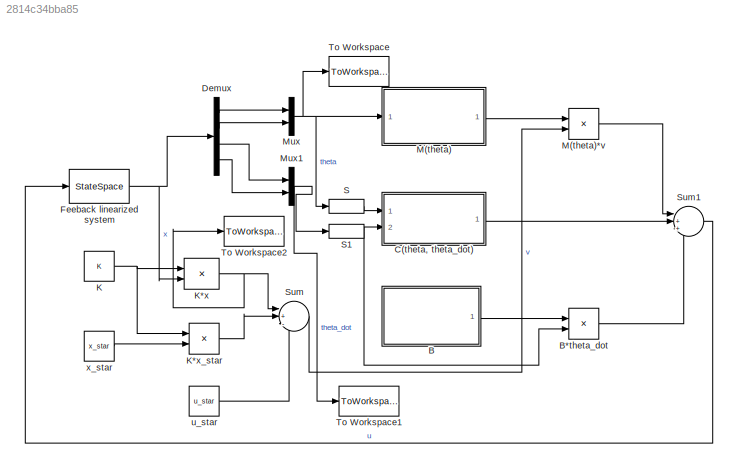
MODEL slx_2814c34bba85
KIND model
CONFIG AbsTol = auto
CONFIG FixedStep = auto
CONFIG MaxStep = auto
CONFIG MinStep = auto
CONFIG RelTol = 1e-3
CONFIG SampleTimeConstraint = Unconstrained
CONFIG Solver = ode45
CONFIG SolverMode = Auto
CONFIG SolverName = ode45
CONFIG StartTime = 0.0
CONFIG StopTime = 5
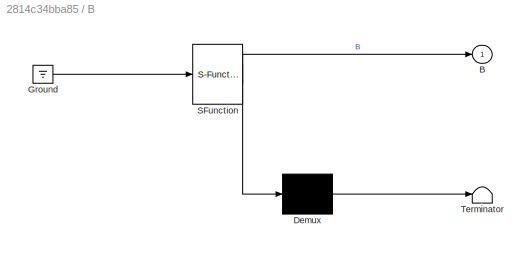
BLOCK [SubSystem] B
  ErrorFcn = Stateflow.Translate.translate
  PermitHierarchicalResolution = ExplicitOnly
  Ports = [0, 1]
  RequestExecContextInheritance = off
  SFBlockType = MATLAB Function
  TreatAsAtomicUnit = on
BLOCK [Product] B*theta_dot
  InputSameDT = off
  Multiplication = Matrix(*)
  OutDataTypeStr = Inherit: Inherit via internal rule
  Ports = [2, 1]
  RndMeth = Floor
  SaturateOnIntegerOverflow = off
BLOCK [Demux] B/ Demux 
  Outputs = 1
  Ports = [1, 1]
BLOCK [Ground] B/ Ground 
BLOCK [S-Function] B/ SFunction 
  EnableBusSupport = on
  FunctionName = sf_sfun
  PortCounts = [1 2]
  Ports = [1, 2]
  Tag = Stateflow S-Function sim_feedback_lin 3
BLOCK [Terminator] B/ Terminator 
BLOCK [Outport] B/B
  IconDisplay = Port number
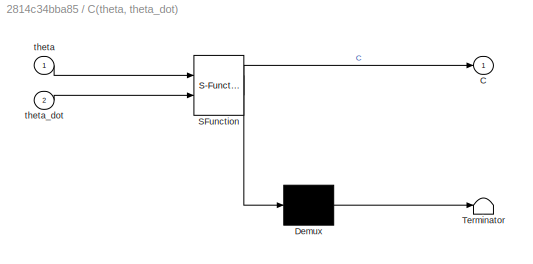
BLOCK [SubSystem] C(theta, theta_dot)
  ErrorFcn = Stateflow.Translate.translate
  PermitHierarchicalResolution = ExplicitOnly
  Ports = [2, 1]
  RequestExecContextInheritance = off
  SFBlockType = MATLAB Function
  TreatAsAtomicUnit = on
BLOCK [Demux] C(theta, theta_dot)/ Demux 
  Outputs = 1
  Ports = [1, 1]
BLOCK [S-Function] C(theta, theta_dot)/ SFunction 
  EnableBusSupport = on
  FunctionName = sf_sfun
  PortCounts = [2 2]
  Ports = [2, 2]
  Tag = Stateflow S-Function sim_feedback_lin 1
BLOCK [Terminator] C(theta, theta_dot)/ Terminator 
BLOCK [Outport] C(theta, theta_dot)/C
  IconDisplay = Port number
BLOCK [Inport] C(theta, theta_dot)/theta
  IconDisplay = Port number
BLOCK [Inport] C(theta, theta_dot)/theta_dot
  IconDisplay = Port number
  Port = 2
BLOCK [Demux] Demux
  DisplayOption = bar
  Ports = [1, 4]
BLOCK [StateSpace] Feeback linearized system
  A = A
  B = B
  C = eye(n)
  D = zeros(n,m)
  Ports = [1, 1]
  X0 = [pi/2 pi/2 0 0]
BLOCK [Constant] K
  Value = K
BLOCK [Product] K*x
  InputSameDT = off
  Multiplication = Matrix(*)
  OutDataTypeStr = Inherit: Inherit via internal rule
  Ports = [2, 1]
  RndMeth = Floor
  SaturateOnIntegerOverflow = off
BLOCK [Product] K*x_star
  InputSameDT = off
  Multiplication = Matrix(*)
  OutDataTypeStr = Inherit: Inherit via internal rule
  Ports = [2, 1]
  RndMeth = Floor
  SaturateOnIntegerOverflow = off
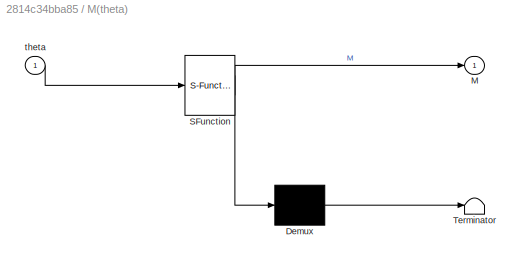
BLOCK [SubSystem] M(theta)
  ErrorFcn = Stateflow.Translate.translate
  PermitHierarchicalResolution = ExplicitOnly
  Ports = [1, 1]
  RequestExecContextInheritance = off
  SFBlockType = MATLAB Function
  TreatAsAtomicUnit = on
BLOCK [Product] M(theta)*v
  InputSameDT = off
  Multiplication = Matrix(*)
  OutDataTypeStr = Inherit: Inherit via internal rule
  Ports = [2, 1]
  RndMeth = Floor
  SaturateOnIntegerOverflow = off
BLOCK [Demux] M(theta)/ Demux 
  Outputs = 1
  Ports = [1, 1]
BLOCK [S-Function] M(theta)/ SFunction 
  EnableBusSupport = on
  FunctionName = sf_sfun
  PortCounts = [1 2]
  Ports = [1, 2]
  Tag = Stateflow S-Function sim_feedback_lin 2
BLOCK [Terminator] M(theta)/ Terminator 
BLOCK [Outport] M(theta)/M
  IconDisplay = Port number
BLOCK [Inport] M(theta)/theta
  IconDisplay = Port number
BLOCK [Mux] Mux
  DisplayOption = bar
  Inputs = 2
  Ports = [2, 1]
BLOCK [Mux] Mux1
  DisplayOption = bar
  Inputs = 2
  Ports = [2, 1]
BLOCK [SignalSpecification] S
  Dimensions = [2 1]
BLOCK [SignalSpecification] S1
  Dimensions = [2 1]
BLOCK [Sum] Sum
  IconShape = round
  InputSameDT = off
  Inputs = |+-|+
  OutDataTypeStr = Inherit: Inherit via internal rule
  Ports = [3, 1]
  SaturateOnIntegerOverflow = off
BLOCK [Sum] Sum1
  IconShape = round
  InputSameDT = off
  Inputs = |++|+
  OutDataTypeStr = Inherit: Inherit via internal rule
  Ports = [3, 1]
  SaturateOnIntegerOverflow = off
BLOCK [ToWorkspace] To Workspace
  FixptAsFi = on
  MaxDataPoints = inf
  Ports = [1]
  SampleTime = -1
  Save2DSignal = 3-D array (concatenate along third dimension)
  SaveFormat = Timeseries
  VariableName = sim_theta
BLOCK [ToWorkspace] To Workspace1
  FixptAsFi = on
  MaxDataPoints = inf
  Ports = [1]
  SampleTime = -1
  Save2DSignal = 3-D array (concatenate along third dimension)
  SaveFormat = Timeseries
  VariableName = sim_theta_dot
BLOCK [ToWorkspace] To Workspace2
  FixptAsFi = on
  MaxDataPoints = inf
  Ports = [1]
  SampleTime = -1
  Save2DSignal = 3-D array (concatenate along third dimension)
  SaveFormat = Timeseries
  VariableName = Kx
BLOCK [Constant] u_star
  Value = u_star
BLOCK [Constant] x_star
  Value = x_star
LINE B*theta_dot:1 -> Sum1:3
LINE B:1 -> B*theta_dot:1
LINE C(theta, theta_dot):1 -> Sum1:2
LINE Demux:1 -> Mux:1
LINE Demux:2 -> Mux:2
LINE Demux:3 -> Mux1:1
LINE Demux:4 -> Mux1:2
NET Feeback linearized system:1 -> Demux:1, K*x:2
NET K*x:1 -> Sum:1, To Workspace2:1
LINE K*x_star:1 -> Sum:2
NET K:1 -> K*x:1, K*x_star:1
LINE M(theta)*v:1 -> Sum1:1
LINE M(theta):1 -> M(theta)*v:1
NET Mux1:1 -> S1:1, To Workspace1:1
NET Mux:1 -> M(theta):1, S:1, To Workspace:1
NET S1:1 -> B*theta_dot:2, C(theta, theta_dot):2
LINE S:1 -> C(theta, theta_dot):1
LINE Sum1:1 -> Feeback linearized system:1
LINE Sum:1 -> M(theta)*v:2
LINE u_star:1 -> Sum:3
LINE x_star:1 -> K*x_star:2
note: NET lines group one-source signal fan-out (src -> all destinations, sorted); 1:1 wires keep LINE
CHART C(theta, theta_dot) states=1 transitions=1
  STATE_LABEL 'eML_blk_kernel()'
  STATE_LABEL 'SCRIPT:\nfunction C = sim_coriolis_mtx(theta, theta_dot)\n\nC = coriolis_mtx(theta, theta_dot);'
CHART M(theta) states=1 transitions=1
  STATE_LABEL 'eML_blk_kernel()'
  STATE_LABEL 'SCRIPT:\nfunction M = sim_intertia_mtx(theta)\n\nM = inertia_mtx(theta);'
CHART B states=1 transitions=1
  STATE_LABEL 'eML_blk_kernel()'
  STATE_LABEL 'SCRIPT:\nfunction B = sim_joint_friction_mtx\n\nB = joint_friction_mtx();'
